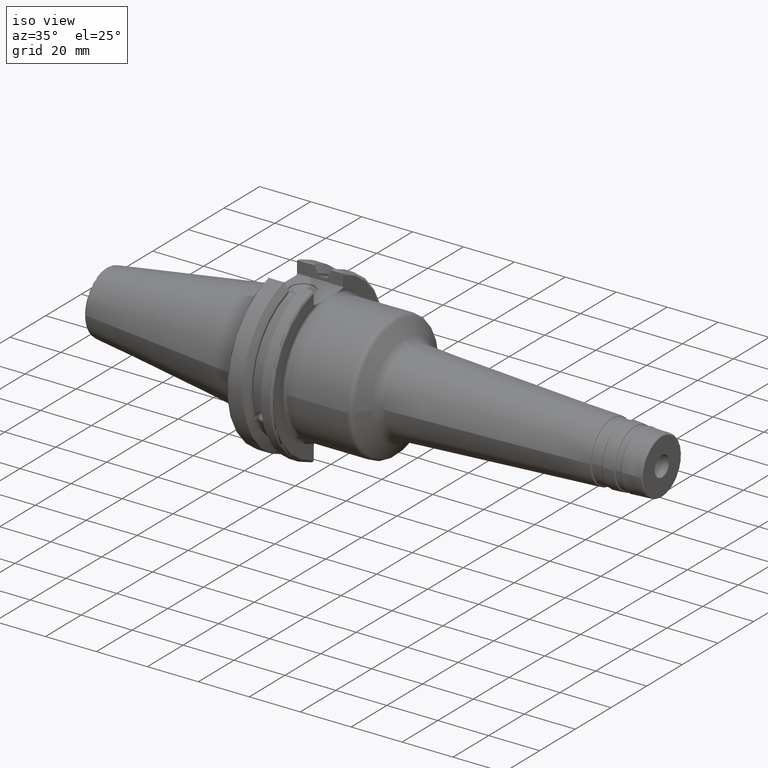
[diagram: clean part render]
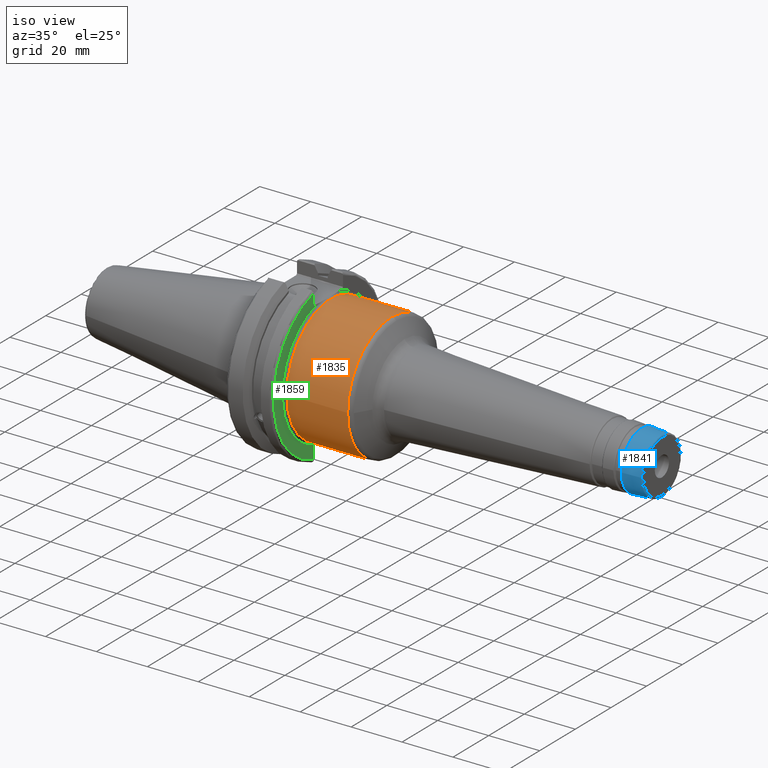
[diagram: same view with three faces highlighted in distinct colors, each labeled with its STEP entity id]
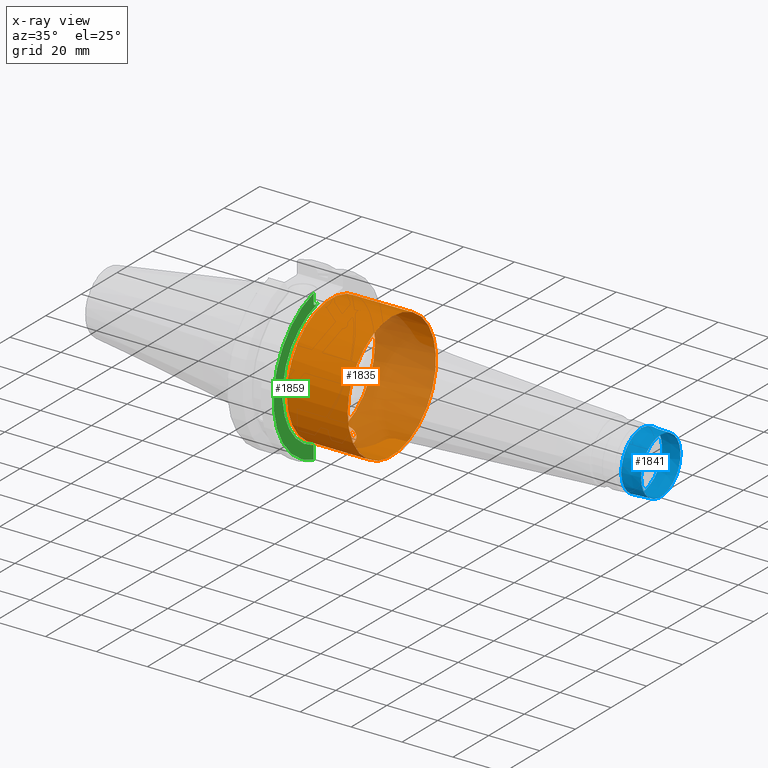
[diagram: x-ray of the same camera — body ghosted, the three highlighted faces saturated]
A machine part, iso view with three faces highlighted in distinct colors.
The next image is the same camera in x-ray (body ghosted, the three faces saturated) — at least one of them is partly hidden behind the body in this view.
Their STEP definitions:

[orange] entity #1835 — the highlighted cylindrical surface (bore or boss wall) has radius 24.75 mm, axis along (1, 0, 0).
#122=B_SPLINE_CURVE_WITH_KNOTS('',3,(#2913,#2914,#2915,#2916,#2917,#2918,
#2919,#2920,#2921,#2922,#2923,#2924,#2925,#2926,#2927,#2928,#2929,#2930),
 .UNSPECIFIED.,.F.,.F.,(4,2,2,2,2,2,2,2,4),(-2.48845986202559,-2.17733241913027,
-1.86620497623495,-1.55521745362387,-1.24422993101279,-0.933242408401712,
-0.622254885790633,-0.311127442895316,0.),.UNSPECIFIED.);
#158=CYLINDRICAL_SURFACE('',#1973,24.75);
#190=FACE_OUTER_BOUND('',#299,.T.);
#299=EDGE_LOOP('',(#1250,#1251,#1252,#1253,#1254,#1255,#1256));
#420=LINE('',#2941,#518);
#518=VECTOR('',#2250,24.75);
#617=CIRCLE('',#1974,24.75);
#618=CIRCLE('',#1975,24.75);
#619=CIRCLE('',#1976,24.75);
#620=CIRCLE('',#1977,24.75);
#745=VERTEX_POINT('',#2911);
#746=VERTEX_POINT('',#2912);
#749=VERTEX_POINT('',#2937);
#750=VERTEX_POINT('',#2938);
#751=VERTEX_POINT('',#2940);
#943=EDGE_CURVE('',#745,#746,#122,.T.);
#947=EDGE_CURVE('',#749,#750,#617,.T.);
#948=EDGE_CURVE('',#749,#751,#420,.T.);
#949=EDGE_CURVE('',#745,#751,#618,.T.);
#950=EDGE_CURVE('',#751,#746,#619,.T.);
#951=EDGE_CURVE('',#750,#749,#620,.T.);
#1250=ORIENTED_EDGE('',*,*,#947,.F.);
#1251=ORIENTED_EDGE('',*,*,#948,.T.);
#1252=ORIENTED_EDGE('',*,*,#949,.F.);
#1253=ORIENTED_EDGE('',*,*,#943,.T.);
#1254=ORIENTED_EDGE('',*,*,#950,.F.);
#1255=ORIENTED_EDGE('',*,*,#948,.F.);
#1256=ORIENTED_EDGE('',*,*,#951,.F.);
#1835=ADVANCED_FACE('',(#190),#158,.T.);
#1973=AXIS2_PLACEMENT_3D('',#2936,#2246,#2247);
#1974=AXIS2_PLACEMENT_3D('',#2939,#2248,#2249);
#1975=AXIS2_PLACEMENT_3D('',#2942,#2251,#2252);
#1976=AXIS2_PLACEMENT_3D('',#2943,#2253,#2254);
#1977=AXIS2_PLACEMENT_3D('',#2944,#2255,#2256);
#2246=DIRECTION('center_axis',(1.,0.,0.));
#2247=DIRECTION('ref_axis',(0.,1.,0.));
#2248=DIRECTION('center_axis',(1.,0.,0.));
#2249=DIRECTION('ref_axis',(0.,-1.,1.83697019872103E-16));
#2250=DIRECTION('',(-1.,0.,0.));
#2251=DIRECTION('center_axis',(-1.,0.,0.));
#2252=DIRECTION('ref_axis',(0.,6.12323399573677E-17,1.));
#2253=DIRECTION('center_axis',(-1.,0.,0.));
#2254=DIRECTION('ref_axis',(0.,6.12323399573677E-17,1.));
#2255=DIRECTION('center_axis',(1.,0.,0.));
#2256=DIRECTION('ref_axis',(0.,-1.,1.83697019872103E-16));
#2911=CARTESIAN_POINT('',(20.05,-8.19,-23.3556502799644));
#2912=CARTESIAN_POINT('',(20.05,8.18999999999999,-23.3556502799644));
#2913=CARTESIAN_POINT('Ctrl Pts',(20.05,-8.19,-23.3556502799644));
#2914=CARTESIAN_POINT('Ctrl Pts',(21.0870914763177,-8.19,-23.3556502799644));
#2915=CARTESIAN_POINT('Ctrl Pts',(22.1874172494719,-7.98112852617488,-23.4319820145953));
#2916=CARTESIAN_POINT('Ctrl Pts',(24.2026226557734,-7.14301766428651,-23.7009173446597));
#2917=CARTESIAN_POINT('Ctrl Pts',(25.1182638848105,-6.51414519102515,-23.8889373554493));
#2918=CARTESIAN_POINT('Ctrl Pts',(26.563820070037,-5.06858900579863,-24.2368381566145));
#2919=CARTESIAN_POINT('Ctrl Pts',(27.1929429534371,-4.15281808103606,-24.420258379043));
#2920=CARTESIAN_POINT('Ctrl Pts',(28.0312404144778,-2.13713243178097,-24.6784841969774));
#2921=CARTESIAN_POINT('Ctrl Pts',(28.24,-1.03662507537027,-24.75));
#2922=CARTESIAN_POINT('Ctrl Pts',(28.24,1.03662507537027,-24.75));
#2923=CARTESIAN_POINT('Ctrl Pts',(28.0312404144778,2.13713243178098,-24.6784841969774));
#2924=CARTESIAN_POINT('Ctrl Pts',(27.1929429534371,4.15281808103607,-24.420258379043));
#2925=CARTESIAN_POINT('Ctrl Pts',(26.563820070037,5.06858900579863,-24.2368381566145));
#2926=CARTESIAN_POINT('Ctrl Pts',(25.1182638848105,6.51414519102515,-23.8889373554493));
#2927=CARTESIAN_POINT('Ctrl Pts',(24.2026226557734,7.14301766428652,-23.7009173446597));
#2928=CARTESIAN_POINT('Ctrl Pts',(22.1874172494719,7.98112852617489,-23.4319820145953));
#2929=CARTESIAN_POINT('Ctrl Pts',(21.0870914763177,8.19,-23.3556502799644));
#2930=CARTESIAN_POINT('Ctrl Pts',(20.05,8.19,-23.3556502799644));
#2936=CARTESIAN_POINT('Origin',(32.068599173156,0.,0.));
#2937=CARTESIAN_POINT('',(43.9324978079328,-24.75,-3.0310008278897E-15));
#2938=CARTESIAN_POINT('',(43.9324978079328,-3.0310008278897E-15,24.75));
#2939=CARTESIAN_POINT('Origin',(43.9324978079328,0.,0.));
#2940=CARTESIAN_POINT('',(20.05,-24.75,-3.0310008278897E-15));
#2941=CARTESIAN_POINT('',(32.068599173156,-24.75,-3.0310008278897E-15));
#2942=CARTESIAN_POINT('Origin',(20.05,0.,0.));
#2943=CARTESIAN_POINT('Origin',(20.05,0.,0.));
#2944=CARTESIAN_POINT('Origin',(43.9324978079328,0.,0.));

[blue] entity #1841 — the highlighted conical surface has half-angle 3 deg.
#196=FACE_OUTER_BOUND('',#305,.T.);
#305=EDGE_LOOP('',(#1286,#1287,#1288,#1289,#1290,#1291));
#423=LINE('',#2979,#521);
#521=VECTOR('',#2299,11.2144933145358);
#633=CIRCLE('',#1995,11.0248324840198);
#634=CIRCLE('',#1996,11.0248324840198);
#635=CIRCLE('',#1998,11.4169001577015);
#636=CIRCLE('',#1999,11.4169001577015);
#761=VERTEX_POINT('',#2972);
#762=VERTEX_POINT('',#2974);
#763=VERTEX_POINT('',#2978);
#764=VERTEX_POINT('',#2980);
#966=EDGE_CURVE('',#761,#762,#633,.T.);
#967=EDGE_CURVE('',#762,#761,#634,.T.);
#968=EDGE_CURVE('',#762,#763,#423,.T.);
#969=EDGE_CURVE('',#764,#763,#635,.T.);
#970=EDGE_CURVE('',#763,#764,#636,.T.);
#1286=ORIENTED_EDGE('',*,*,#967,.F.);
#1287=ORIENTED_EDGE('',*,*,#968,.T.);
#1288=ORIENTED_EDGE('',*,*,#969,.F.);
#1289=ORIENTED_EDGE('',*,*,#970,.F.);
#1290=ORIENTED_EDGE('',*,*,#968,.F.);
#1291=ORIENTED_EDGE('',*,*,#966,.F.);
#1810=CONICAL_SURFACE('',#1997,11.2144933145358,0.0523598775598297);
#1841=ADVANCED_FACE('',(#196),#1810,.T.);
#1995=AXIS2_PLACEMENT_3D('',#2975,#2293,#2294);
#1996=AXIS2_PLACEMENT_3D('',#2976,#2295,#2296);
#1997=AXIS2_PLACEMENT_3D('',#2977,#2297,#2298);
#1998=AXIS2_PLACEMENT_3D('',#2981,#2300,#2301);
#1999=AXIS2_PLACEMENT_3D('',#2982,#2302,#2303);
#2293=DIRECTION('center_axis',(1.,0.,0.));
#2294=DIRECTION('ref_axis',(0.,-1.,3.06161699786838E-17));
#2295=DIRECTION('center_axis',(1.,0.,0.));
#2296=DIRECTION('ref_axis',(0.,-1.,3.06161699786838E-17));
#2297=DIRECTION('center_axis',(-1.,0.,0.));
#2298=DIRECTION('ref_axis',(0.,1.,0.));
#2299=DIRECTION('',(-0.998629534754574,-0.0523359562429436,-6.40930612932368E-18));
#2300=DIRECTION('center_axis',(-1.,0.,0.));
#2301=DIRECTION('ref_axis',(0.,-1.,3.06161699786838E-17));
#2302=DIRECTION('center_axis',(-1.,0.,0.));
#2303=DIRECTION('ref_axis',(0.,-1.,3.06161699786838E-17));
#2972=CARTESIAN_POINT('',(149.526167978121,-1.35015258126907E-15,11.0248324840198));
#2974=CARTESIAN_POINT('',(149.526167978121,-11.0248324840198,-1.35015258126907E-15));
#2975=CARTESIAN_POINT('Origin',(149.526167978121,0.,-1.68769072658633E-15));
#2976=CARTESIAN_POINT('Origin',(149.526167978121,0.,-1.68769072658633E-15));
#2977=CARTESIAN_POINT('Origin',(145.907223746739,0.,0.));
#2978=CARTESIAN_POINT('',(142.045071105762,-11.4169001577015,-1.39816702343141E-15));
#2979=CARTESIAN_POINT('',(145.907223746739,-11.2144933145358,-1.37337933417057E-15));
#2980=CARTESIAN_POINT('',(142.045071105762,-1.39816702343141E-15,11.4169001577015));
#2981=CARTESIAN_POINT('Origin',(142.045071105762,0.,-1.74770877928926E-15));
#2982=CARTESIAN_POINT('Origin',(142.045071105762,0.,-1.74770877928926E-15));

[green] entity #1859 — the highlighted planar face has unit normal (1, 0, 0).
#50=PLANE('',#2056);
#214=FACE_OUTER_BOUND('',#324,.T.);
#324=EDGE_LOOP('',(#1391,#1392,#1393,#1394,#1395,#1396));
#431=LINE('',#3111,#529);
#432=LINE('',#3113,#530);
#433=LINE('',#3115,#531);
#434=LINE('',#3118,#532);
#529=VECTOR('',#2425,10.);
#530=VECTOR('',#2426,10.);
#531=VECTOR('',#2427,10.);
#532=VECTOR('',#2430,10.);
#674=CIRCLE('',#2054,25.75);
#676=CIRCLE('',#2057,30.75);
#794=VERTEX_POINT('',#3073);
#796=VERTEX_POINT('',#3085);
#798=VERTEX_POINT('',#3110);
#799=VERTEX_POINT('',#3112);
#800=VERTEX_POINT('',#3114);
#801=VERTEX_POINT('',#3116);
#1016=EDGE_CURVE('',#794,#796,#674,.T.);
#1020=EDGE_CURVE('',#794,#798,#431,.T.);
#1021=EDGE_CURVE('',#799,#798,#432,.T.);
#1022=EDGE_CURVE('',#799,#800,#433,.T.);
#1023=EDGE_CURVE('',#801,#800,#676,.T.);
#1024=EDGE_CURVE('',#801,#796,#434,.T.);
#1391=ORIENTED_EDGE('',*,*,#1016,.F.);
#1392=ORIENTED_EDGE('',*,*,#1020,.T.);
#1393=ORIENTED_EDGE('',*,*,#1021,.F.);
#1394=ORIENTED_EDGE('',*,*,#1022,.T.);
#1395=ORIENTED_EDGE('',*,*,#1023,.F.);
#1396=ORIENTED_EDGE('',*,*,#1024,.T.);
#1859=ADVANCED_FACE('',(#214),#50,.T.);
#2054=AXIS2_PLACEMENT_3D('',#3086,#2419,#2420);
#2056=AXIS2_PLACEMENT_3D('',#3109,#2423,#2424);
#2057=AXIS2_PLACEMENT_3D('',#3117,#2428,#2429);
#2419=DIRECTION('center_axis',(1.,0.,0.));
#2420=DIRECTION('ref_axis',(0.,6.12323399573677E-17,1.));
#2423=DIRECTION('center_axis',(1.,0.,0.));
#2424=DIRECTION('ref_axis',(0.,0.,-1.));
#2425=DIRECTION('',(0.,-1.,0.));
#2426=DIRECTION('',(0.,0.70710678118655,-0.707106781186545));
#2427=DIRECTION('',(0.,0.,1.));
#2428=DIRECTION('center_axis',(-1.,0.,0.));
#2429=DIRECTION('ref_axis',(0.,-1.,1.60812264967664E-16));
#2430=DIRECTION('',(0.,0.,1.));
#3073=CARTESIAN_POINT('',(19.05,-6.16948133962654,25.));
#3085=CARTESIAN_POINT('',(19.05,-8.19,-24.4128326910254));
#3086=CARTESIAN_POINT('Origin',(19.05,0.,0.));
#3109=CARTESIAN_POINT('Origin',(19.05,0.,0.));
#3110=CARTESIAN_POINT('',(19.05,-7.69,25.));
#3111=CARTESIAN_POINT('',(19.05,0.,25.));
#3112=CARTESIAN_POINT('',(19.05,-8.19,25.5));
#3113=CARTESIAN_POINT('',(19.05,0.357500000000014,16.9525));
#3114=CARTESIAN_POINT('',(19.05,-8.19,29.6392712461019));
#3115=CARTESIAN_POINT('',(19.05,-8.19,12.5));
#3116=CARTESIAN_POINT('',(19.05,-8.19,-29.6392712461019));
#3117=CARTESIAN_POINT('Origin',(19.05,0.,0.));
#3118=CARTESIAN_POINT('',(19.05,-8.19,-11.3));